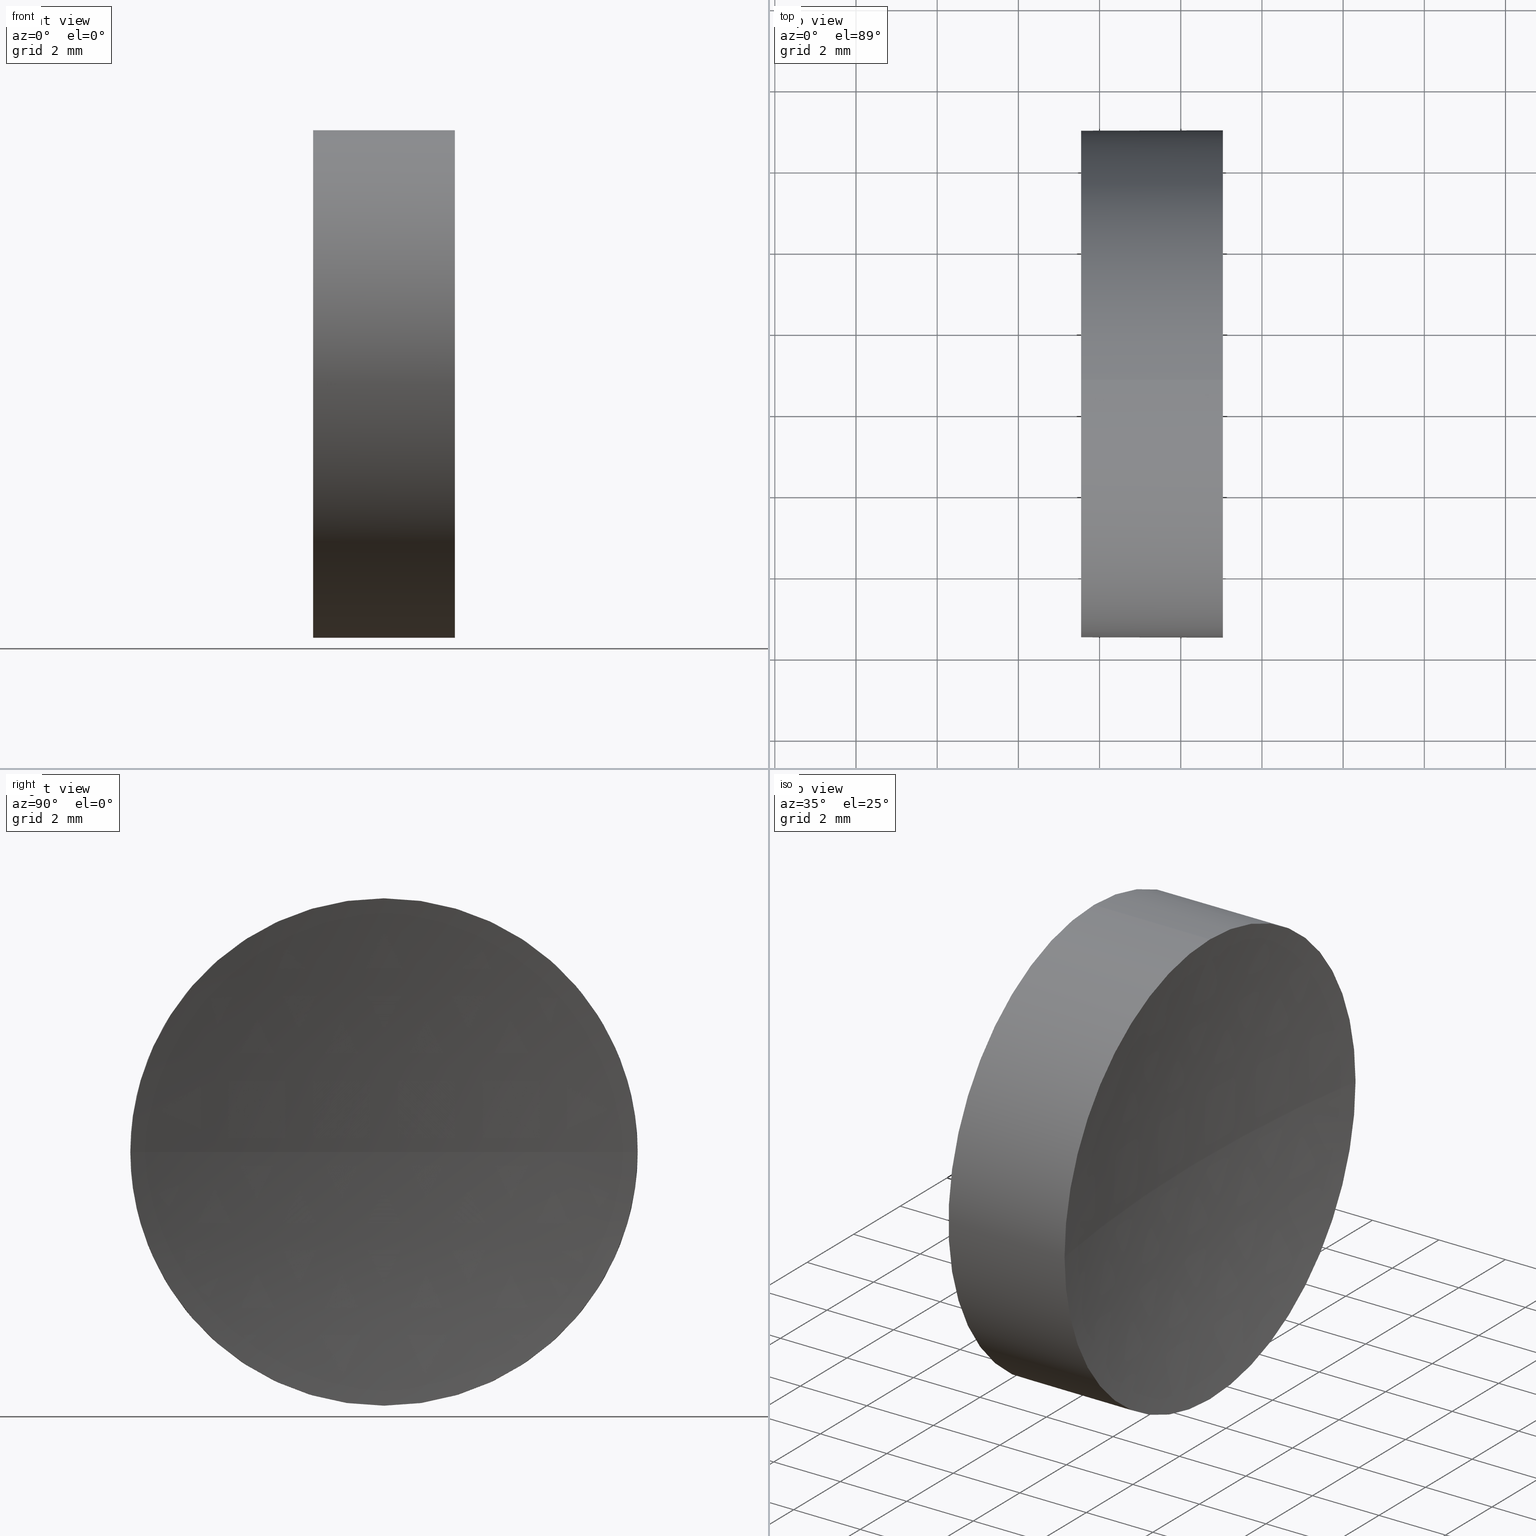
[diagram: canonical four-view strip — front | top / right | iso, engineering-drawing reading convention]
A machine part, canonical four-view strip (front | top / right | iso — engineering-drawing reading convention). The complete STEP part file that produces these views, byte-faithful:
ISO-10303-21;
HEADER;
FILE_DESCRIPTION (( 'STEP AP214' ),
    '1' );
FILE_NAME ('270003.STEP',
    '2019-07-22T02:11:02',
    ( '' ),
    ( '' ),
    'SwSTEP 2.0',
    'SolidWorks 2016',
    '' );
FILE_SCHEMA (( 'AUTOMOTIVE_DESIGN' ));
ENDSEC;

DATA;
#1 = LINE ( 'NONE', #40, #65 ) ;
#2 = ADVANCED_FACE ( 'NONE', ( #54 ), #169, .T. ) ;
#3 = CARTESIAN_POINT ( 'NONE',  ( 54.49257150108255100, 34.68901056168621700, 0.0000000000000000000 ) ) ;
#4 =( GEOMETRIC_REPRESENTATION_CONTEXT ( 3 ) GLOBAL_UNCERTAINTY_ASSIGNED_CONTEXT ( ( #78 ) ) GLOBAL_UNIT_ASSIGNED_CONTEXT ( ( #25, #178, #23 ) ) REPRESENTATION_CONTEXT ( 'NONE', 'WORKASPACE' ) );
#5 = FACE_OUTER_BOUND ( 'NONE', #98, .T. ) ;
#6 = APPLICATION_PROTOCOL_DEFINITION ( 'draft international standard', 'automotive_design', 1998, #63 ) ;
#7 = CARTESIAN_POINT ( 'NONE',  ( 61.03762619563895700, 34.68901056168621700, 0.0000000000000000000 ) ) ;
#8 = DIRECTION ( 'NONE',  ( -1.000000000000000000, -0.0000000000000000000, -0.0000000000000000000 ) ) ;
#9 = PRODUCT_DEFINITION ( 'δ֪', '', #70, #176 ) ;
#10 = CARTESIAN_POINT ( 'NONE',  ( 57.54632776745975800, 34.68901056168621700, 0.0000000000000000000 ) ) ;
#11 = CARTESIAN_POINT ( 'NONE',  ( 61.03762619563895700, 34.68901056168621700, 6.250000000000004400 ) ) ;
#12 = CYLINDRICAL_SURFACE ( 'NONE', #145, 6.250000000000001800 ) ;
#13 = FACE_OUTER_BOUND ( 'NONE', #172, .T. ) ;
#14 = DIRECTION ( 'NONE',  ( -1.000000000000000000, -0.0000000000000000000, -0.0000000000000000000 ) ) ;
#15 = VERTEX_POINT ( 'NONE', #164 ) ;
#16 = MECHANICAL_DESIGN_GEOMETRIC_PRESENTATION_REPRESENTATION (  '', ( #149 ), #33 ) ;
#17 = DIRECTION ( 'NONE',  ( -1.000000000000000000, -0.0000000000000000000, -0.0000000000000000000 ) ) ;
#18 = CARTESIAN_POINT ( 'NONE',  ( 54.49257150108255100, 34.68901056168621700, 0.0000000000000000000 ) ) ;
#19 =( NAMED_UNIT ( * ) PLANE_ANGLE_UNIT ( ) SI_UNIT ( $, .RADIAN. ) );
#20 = EDGE_CURVE ( 'NONE', #47, #148, #161, .T. ) ;
#21 = CIRCLE ( 'NONE', #156, 6.250000000000005300 ) ;
#22 = ORIENTED_EDGE ( 'NONE', *, *, #46, .F. ) ;
#23 =( NAMED_UNIT ( * ) SI_UNIT ( $, .STERADIAN. ) SOLID_ANGLE_UNIT ( ) );
#24 = FILL_AREA_STYLE ('',( #84 ) ) ;
#25 =( LENGTH_UNIT ( ) NAMED_UNIT ( * ) SI_UNIT ( .MILLI., .METRE. ) );
#26 = FILL_AREA_STYLE_COLOUR ( '', #68 ) ;
#27 = AXIS2_PLACEMENT_3D ( 'NONE', #134, #44, #170 ) ;
#28 = ORIENTED_EDGE ( 'NONE', *, *, #77, .T. ) ;
#29 = ORIENTED_EDGE ( 'NONE', *, *, #165, .T. ) ;
#30 = SURFACE_STYLE_FILL_AREA ( #24 ) ;
#31 = DIRECTION ( 'NONE',  ( -1.000000000000000000, -0.0000000000000000000, -0.0000000000000000000 ) ) ;
#32 = CARTESIAN_POINT ( 'NONE',  ( 61.03762619563895700, 28.43901056168619600, -7.654042494670957600E-016 ) ) ;
#33 =( GEOMETRIC_REPRESENTATION_CONTEXT ( 3 ) GLOBAL_UNCERTAINTY_ASSIGNED_CONTEXT ( ( #162 ) ) GLOBAL_UNIT_ASSIGNED_CONTEXT ( ( #173, #74, #184 ) ) REPRESENTATION_CONTEXT ( 'NONE', 'WORKASPACE' ) );
#34 = VERTEX_POINT ( 'NONE', #127 ) ;
#35 = DIRECTION ( 'NONE',  ( 0.0000000000000000000, 0.0000000000000000000, 1.000000000000000000 ) ) ;
#36 = SURFACE_STYLE_USAGE ( .BOTH. , #73 ) ;
#37 = CIRCLE ( 'NONE', #186, 6.249999999999998200 ) ;
#38 = ORIENTED_EDGE ( 'NONE', *, *, #77, .F. ) ;
#39 = ORIENTED_EDGE ( 'NONE', *, *, #92, .T. ) ;
#40 = CARTESIAN_POINT ( 'NONE',  ( 54.49257150108255100, 34.68901056168621700, -6.250000000000001800 ) ) ;
#41 = CARTESIAN_POINT ( 'NONE',  ( 57.54632776745975800, 34.68901056168621700, 0.0000000000000000000 ) ) ;
#42 = ORIENTED_EDGE ( 'NONE', *, *, #46, .T. ) ;
#43 = DIRECTION ( 'NONE',  ( 0.0000000000000000000, 0.0000000000000000000, 1.000000000000000000 ) ) ;
#44 = DIRECTION ( 'NONE',  ( 0.0000000000000000000, 1.224646799147353200E-016, -1.000000000000000000 ) ) ;
#45 = DIRECTION ( 'NONE',  ( 0.0000000000000000000, 1.000000000000000000, 0.0000000000000000000 ) ) ;
#46 = EDGE_CURVE ( 'NONE', #15, #66, #37, .T. ) ;
#47 = VERTEX_POINT ( 'NONE', #32 ) ;
#48 = APPLICATION_CONTEXT ( 'automotive_design' ) ;
#49 = DIRECTION ( 'NONE',  ( 0.0000000000000000000, 0.0000000000000000000, 1.000000000000000000 ) ) ;
#50 = CARTESIAN_POINT ( 'NONE',  ( 61.03762619563895700, 34.68901056168621700, 0.0000000000000000000 ) ) ;
#51 = FACE_OUTER_BOUND ( 'NONE', #79, .T. ) ;
#52 = FACE_OUTER_BOUND ( 'NONE', #159, .T. ) ;
#53 = ADVANCED_FACE ( 'NONE', ( #5 ), #12, .T. ) ;
#54 = FACE_OUTER_BOUND ( 'NONE', #105, .T. ) ;
#55 = ORIENTED_EDGE ( 'NONE', *, *, #90, .T. ) ;
#56 = EDGE_CURVE ( 'NONE', #106, #66, #1, .T. ) ;
#57 = DIRECTION ( 'NONE',  ( 1.000000000000000000, 0.0000000000000000000, 0.0000000000000000000 ) ) ;
#58 = AXIS2_PLACEMENT_3D ( 'NONE', #104, #62, #116 ) ;
#59 =( NAMED_UNIT ( * ) SI_UNIT ( $, .STERADIAN. ) SOLID_ANGLE_UNIT ( ) );
#60 = PRODUCT ( '270003', '270003', '', ( #135 ) ) ;
#61 = PRESENTATION_STYLE_ASSIGNMENT (( #175 ) ) ;
#62 = DIRECTION ( 'NONE',  ( 0.0000000000000000000, 0.0000000000000000000, 1.000000000000000000 ) ) ;
#63 = APPLICATION_CONTEXT ( 'automotive_design' ) ;
#64 = VECTOR ( 'NONE', #138, 1000.000000000000000 ) ;
#65 = VECTOR ( 'NONE', #94, 1000.000000000000000 ) ;
#66 = VERTEX_POINT ( 'NONE', #95 ) ;
#67 = PRESENTATION_LAYER_ASSIGNMENT (  '', '', ( #149 ) ) ;
#68 = COLOUR_RGB ( '',1.000000000000000000, 1.000000000000000000, 1.000000000000000000 ) ;
#69 = ORIENTED_EDGE ( 'NONE', *, *, #20, .F. ) ;
#70 = PRODUCT_DEFINITION_FORMATION_WITH_SPECIFIED_SOURCE ( '�κ�', '', #60, .NOT_KNOWN. ) ;
#71 = ORIENTED_EDGE ( 'NONE', *, *, #90, .F. ) ;
#72 = DIRECTION ( 'NONE',  ( -1.000000000000000000, -0.0000000000000000000, -0.0000000000000000000 ) ) ;
#73 = SURFACE_SIDE_STYLE ('',( #89 ) ) ;
#74 =( NAMED_UNIT ( * ) PLANE_ANGLE_UNIT ( ) SI_UNIT ( $, .RADIAN. ) );
#75 = DIRECTION ( 'NONE',  ( 0.0000000000000000000, 0.0000000000000000000, 1.000000000000000000 ) ) ;
#76 = ORIENTED_EDGE ( 'NONE', *, *, #20, .T. ) ;
#77 = EDGE_CURVE ( 'NONE', #47, #34, #120, .T. ) ;
#78 = UNCERTAINTY_MEASURE_WITH_UNIT (LENGTH_MEASURE( 1.000000000000000100E-005 ), #25, 'distance_accuracy_value', 'NONE');
#79 = EDGE_LOOP ( 'NONE', ( #42, #29 ) ) ;
#80 = CIRCLE ( 'NONE', #115, 6.250000000000005300 ) ;
#81 =( GEOMETRIC_REPRESENTATION_CONTEXT ( 3 ) GLOBAL_UNCERTAINTY_ASSIGNED_CONTEXT ( ( #83 ) ) GLOBAL_UNIT_ASSIGNED_CONTEXT ( ( #117, #19, #59 ) ) REPRESENTATION_CONTEXT ( 'NONE', 'WORKASPACE' ) );
#82 = DIRECTION ( 'NONE',  ( 0.0000000000000000000, 0.0000000000000000000, 1.000000000000000000 ) ) ;
#83 = UNCERTAINTY_MEASURE_WITH_UNIT (LENGTH_MEASURE( 1.000000000000000100E-005 ), #117, 'distance_accuracy_value', 'NONE');
#84 = FILL_AREA_STYLE_COLOUR ( '', #93 ) ;
#85 = DIRECTION ( 'NONE',  ( 0.0000000000000000000, 0.0000000000000000000, 1.000000000000000000 ) ) ;
#86 = DIRECTION ( 'NONE',  ( 0.0000000000000000000, 0.0000000000000000000, -1.000000000000000000 ) ) ;
#87 = ORIENTED_EDGE ( 'NONE', *, *, #56, .T. ) ;
#88 = AXIS2_PLACEMENT_3D ( 'NONE', #182, #57, #168 ) ;
#89 = SURFACE_STYLE_FILL_AREA ( #139 ) ;
#90 = EDGE_CURVE ( 'NONE', #148, #150, #158, .T. ) ;
#91 = ADVANCED_FACE ( 'NONE', ( #51 ), #114, .F. ) ;
#92 = EDGE_CURVE ( 'NONE', #150, #106, #80, .T. ) ;
#93 = COLOUR_RGB ( '',1.000000000000000000, 1.000000000000000000, 1.000000000000000000 ) ;
#94 = DIRECTION ( 'NONE',  ( -1.000000000000000000, -0.0000000000000000000, -0.0000000000000000000 ) ) ;
#95 = CARTESIAN_POINT ( 'NONE',  ( 57.54632776745975800, 34.68901056168621700, -6.249999999999998200 ) ) ;
#96 = LINE ( 'NONE', #155, #64 ) ;
#97 = PRODUCT_DEFINITION_SHAPE ( 'NONE', 'NONE',  #9 ) ;
#98 = EDGE_LOOP ( 'NONE', ( #39, #87, #22, #143, #55 ) ) ;
#99 = SURFACE_SIDE_STYLE ('',( #30 ) ) ;
#100 = PRESENTATION_LAYER_ASSIGNMENT (  '', '', ( #109 ) ) ;
#101 = PRODUCT_RELATED_PRODUCT_CATEGORY ( 'part', '', ( #60 ) ) ;
#102 = CLOSED_SHELL ( 'NONE', ( #53, #125, #180, #2, #91 ) ) ;
#103 = CARTESIAN_POINT ( 'NONE',  ( 100.5463277688367200, 34.68901056168619600, 0.0000000000000000000 ) ) ;
#104 = CARTESIAN_POINT ( 'NONE',  ( 0.0000000000000000000, 0.0000000000000000000, 0.0000000000000000000 ) ) ;
#105 = EDGE_LOOP ( 'NONE', ( #154, #110, #76, #123, #163 ) ) ;
#106 = VERTEX_POINT ( 'NONE', #171 ) ;
#107 = ORIENTED_EDGE ( 'NONE', *, *, #92, .F. ) ;
#108 = AXIS2_PLACEMENT_3D ( 'NONE', #3, #31, #82 ) ;
#109 = STYLED_ITEM ( 'NONE', ( #130 ), #122 ) ;
#110 = ORIENTED_EDGE ( 'NONE', *, *, #119, .T. ) ;
#111 = AXIS2_PLACEMENT_3D ( 'NONE', #10, #72, #49 ) ;
#112 = DIRECTION ( 'NONE',  ( 0.0000000000000000000, 0.0000000000000000000, 1.000000000000000000 ) ) ;
#113 = ORIENTED_EDGE ( 'NONE', *, *, #179, .T. ) ;
#114 = PLANE ( 'NONE',  #88 ) ;
#115 = AXIS2_PLACEMENT_3D ( 'NONE', #7, #174, #85 ) ;
#116 = DIRECTION ( 'NONE',  ( 1.000000000000000000, 0.0000000000000000000, 0.0000000000000000000 ) ) ;
#117 =( LENGTH_UNIT ( ) NAMED_UNIT ( * ) SI_UNIT ( .MILLI., .METRE. ) );
#118 = CARTESIAN_POINT ( 'NONE',  ( 100.5463277688367200, 34.68901056168619600, 0.0000000000000000000 ) ) ;
#119 = EDGE_CURVE ( 'NONE', #106, #47, #21, .T. ) ;
#120 = CIRCLE ( 'NONE', #27, 40.00000000000000000 ) ;
#121 = SHAPE_DEFINITION_REPRESENTATION ( #97, #144 ) ;
#122 = MANIFOLD_SOLID_BREP ( '��ת1', #102 ) ;
#123 = ORIENTED_EDGE ( 'NONE', *, *, #141, .T. ) ;
#124 = AXIS2_PLACEMENT_3D ( 'NONE', #118, #35, #183 ) ;
#125 = ADVANCED_FACE ( 'NONE', ( #52 ), #152, .F. ) ;
#126 = CIRCLE ( 'NONE', #111, 6.249999999999998200 ) ;
#127 = CARTESIAN_POINT ( 'NONE',  ( 60.54632776883671900, 34.68901056168619600, 0.0000000000000000000 ) ) ;
#128 = CARTESIAN_POINT ( 'NONE',  ( 61.03762619563895700, 34.68901056168621700, 0.0000000000000000000 ) ) ;
#129 = AXIS2_PLACEMENT_3D ( 'NONE', #128, #151, #167 ) ;
#130 = PRESENTATION_STYLE_ASSIGNMENT (( #36 ) ) ;
#131 = ORIENTED_EDGE ( 'NONE', *, *, #119, .F. ) ;
#132 = AXIS2_PLACEMENT_3D ( 'NONE', #147, #14, #181 ) ;
#133 = DIRECTION ( 'NONE',  ( -1.000000000000000000, -0.0000000000000000000, -0.0000000000000000000 ) ) ;
#134 = CARTESIAN_POINT ( 'NONE',  ( 100.5463277688367200, 34.68901056168619600, 0.0000000000000000000 ) ) ;
#135 = PRODUCT_CONTEXT ( 'NONE', #63, 'mechanical' ) ;
#136 = DIRECTION ( 'NONE',  ( 0.0000000000000000000, 0.0000000000000000000, -1.000000000000000000 ) ) ;
#137 = MECHANICAL_DESIGN_GEOMETRIC_PRESENTATION_REPRESENTATION (  '', ( #109 ), #81 ) ;
#138 = DIRECTION ( 'NONE',  ( -1.000000000000000000, -0.0000000000000000000, -0.0000000000000000000 ) ) ;
#139 = FILL_AREA_STYLE ('',( #26 ) ) ;
#140 = CARTESIAN_POINT ( 'NONE',  ( 100.5463277688367200, 34.68901056168619600, 0.0000000000000000000 ) ) ;
#141 = EDGE_CURVE ( 'NONE', #148, #15, #96, .T. ) ;
#142 = SPHERICAL_SURFACE ( 'NONE', #160, 40.00000000000000000 ) ;
#143 = ORIENTED_EDGE ( 'NONE', *, *, #141, .F. ) ;
#144 = ADVANCED_BREP_SHAPE_REPRESENTATION ( '270003', ( #122, #58 ), #4 ) ;
#145 = AXIS2_PLACEMENT_3D ( 'NONE', #18, #133, #43 ) ;
#146 = AXIS2_PLACEMENT_3D ( 'NONE', #140, #86, #45 ) ;
#147 = CARTESIAN_POINT ( 'NONE',  ( 61.03762619563895700, 34.68901056168621700, 0.0000000000000000000 ) ) ;
#148 = VERTEX_POINT ( 'NONE', #11 ) ;
#149 = STYLED_ITEM ( 'NONE', ( #61 ), #144 ) ;
#150 = VERTEX_POINT ( 'NONE', #185 ) ;
#151 = DIRECTION ( 'NONE',  ( -1.000000000000000000, -0.0000000000000000000, -0.0000000000000000000 ) ) ;
#152 = SPHERICAL_SURFACE ( 'NONE', #146, 40.00000000000000000 ) ;
#153 = APPLICATION_PROTOCOL_DEFINITION ( 'draft international standard', 'automotive_design', 1998, #48 ) ;
#154 = ORIENTED_EDGE ( 'NONE', *, *, #56, .F. ) ;
#155 = CARTESIAN_POINT ( 'NONE',  ( 54.49257150108255100, 34.68901056168621700, 6.250000000000001800 ) ) ;
#156 = AXIS2_PLACEMENT_3D ( 'NONE', #50, #8, #75 ) ;
#157 = DIRECTION ( 'NONE',  ( 0.0000000000000000000, 1.000000000000000000, 0.0000000000000000000 ) ) ;
#158 = CIRCLE ( 'NONE', #129, 6.250000000000005300 ) ;
#159 = EDGE_LOOP ( 'NONE', ( #69, #28, #166, #71 ) ) ;
#160 = AXIS2_PLACEMENT_3D ( 'NONE', #103, #136, #157 ) ;
#161 = CIRCLE ( 'NONE', #132, 6.250000000000005300 ) ;
#162 = UNCERTAINTY_MEASURE_WITH_UNIT (LENGTH_MEASURE( 1.000000000000000100E-005 ), #173, 'distance_accuracy_value', 'NONE');
#163 = ORIENTED_EDGE ( 'NONE', *, *, #165, .F. ) ;
#164 = CARTESIAN_POINT ( 'NONE',  ( 57.54632776745975800, 34.68901056168621700, 6.249999999999998200 ) ) ;
#165 = EDGE_CURVE ( 'NONE', #66, #15, #126, .T. ) ;
#166 = ORIENTED_EDGE ( 'NONE', *, *, #179, .F. ) ;
#167 = DIRECTION ( 'NONE',  ( 0.0000000000000000000, 0.0000000000000000000, 1.000000000000000000 ) ) ;
#168 = DIRECTION ( 'NONE',  ( 0.0000000000000000000, 0.0000000000000000000, -1.000000000000000000 ) ) ;
#169 = CYLINDRICAL_SURFACE ( 'NONE', #108, 6.250000000000001800 ) ;
#170 = DIRECTION ( 'NONE',  ( 0.0000000000000000000, 1.000000000000000000, 1.224646799147353200E-016 ) ) ;
#171 = CARTESIAN_POINT ( 'NONE',  ( 61.03762619563895700, 34.68901056168621700, -6.250000000000004400 ) ) ;
#172 = EDGE_LOOP ( 'NONE', ( #38, #131, #107, #113 ) ) ;
#173 =( LENGTH_UNIT ( ) NAMED_UNIT ( * ) SI_UNIT ( .MILLI., .METRE. ) );
#174 = DIRECTION ( 'NONE',  ( -1.000000000000000000, -0.0000000000000000000, -0.0000000000000000000 ) ) ;
#175 = SURFACE_STYLE_USAGE ( .BOTH. , #99 ) ;
#176 = PRODUCT_DEFINITION_CONTEXT ( 'detailed design', #48, 'design' ) ;
#177 = CIRCLE ( 'NONE', #124, 39.99999999999999300 ) ;
#178 =( NAMED_UNIT ( * ) PLANE_ANGLE_UNIT ( ) SI_UNIT ( $, .RADIAN. ) );
#179 = EDGE_CURVE ( 'NONE', #150, #34, #177, .T. ) ;
#180 = ADVANCED_FACE ( 'NONE', ( #13 ), #142, .F. ) ;
#181 = DIRECTION ( 'NONE',  ( 0.0000000000000000000, 0.0000000000000000000, 1.000000000000000000 ) ) ;
#182 = CARTESIAN_POINT ( 'NONE',  ( 57.54632776745975800, 34.68901056168621700, 0.0000000000000000000 ) ) ;
#183 = DIRECTION ( 'NONE',  ( 1.000000000000000000, 0.0000000000000000000, 0.0000000000000000000 ) ) ;
#184 =( NAMED_UNIT ( * ) SI_UNIT ( $, .STERADIAN. ) SOLID_ANGLE_UNIT ( ) );
#185 = CARTESIAN_POINT ( 'NONE',  ( 61.03762619563895700, 40.93901056168622400, 0.0000000000000000000 ) ) ;
#186 = AXIS2_PLACEMENT_3D ( 'NONE', #41, #17, #112 ) ;
ENDSEC;
END-ISO-10303-21;
